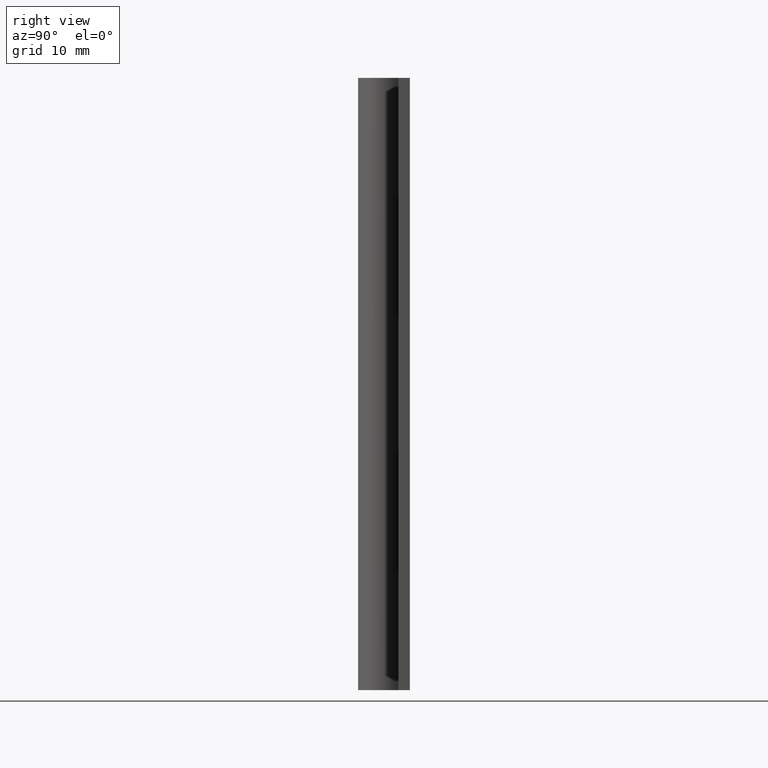
[diagram: clean part render]
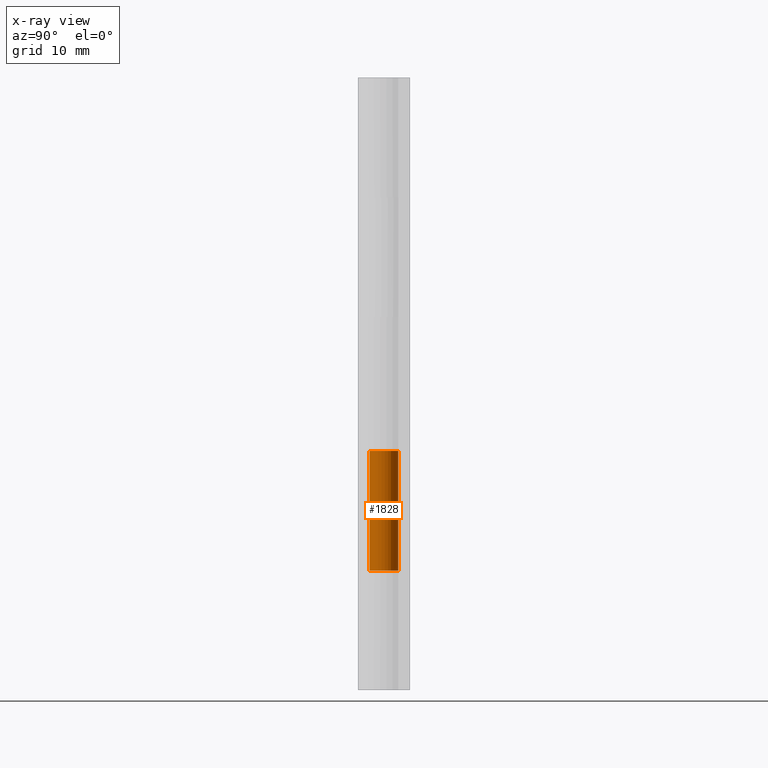
[diagram: x-ray — body ghosted, one internal face saturated and labeled with its STEP entity id]
A machine part, right view, then the same camera in x-ray: the body is ghosted and one INTERNAL B-rep face — a face not visible from any outside direction — is saturated and labeled: STEP entity #1828.
In plain terms, the highlighted face is a freeform B-spline surface patch.
Its self-contained STEP definition (entity closure, byte-faithful):
#1427=CARTESIAN_POINT('',(0.0,1.500000000000000,25.0));
#1428=VERTEX_POINT('',#1427);
#1434=CARTESIAN_POINT('',(-1.265337997103376,0.805555555555553,25.0));
#1435=VERTEX_POINT('',#1434);
#1436=CARTESIAN_POINT('',(-1.265337997103376,0.805555555555554,25.0));
#1437=CARTESIAN_POINT('',(-1.890422249647682,-0.176304541715820,25.000000000000004));
#1438=CARTESIAN_POINT('',(-1.094556678899885,-1.025644030195493,25.0));
#1439=CARTESIAN_POINT('',(-0.298691108152089,-1.874983518675166,25.000000000000004));
#1440=CARTESIAN_POINT('',(0.721687836487034,-1.314977819838291,25.0));
#1441=CARTESIAN_POINT('',(1.742066781126155,-0.754972121001417,25.000000000000004));
#1442=CARTESIAN_POINT('',(1.453008384311226,0.372513939499290,25.0));
#1443=CARTESIAN_POINT('',(1.163949987496296,1.500000000000000,25.000000000000004));
#1444=CARTESIAN_POINT('',(0.0,1.500000000000000,25.0));
#1452=(BOUNDED_CURVE()B_SPLINE_CURVE(2,(#1436,#1437,#1438,#1439,#1440,#1441,#1442,#1443,#1444),.UNSPECIFIED.,.F.,.U.)B_SPLINE_CURVE_WITH_KNOTS((3,2,2,2,3),(0.0,0.250000000000000,0.500000000000000,0.750000000000000,1.0),.UNSPECIFIED.)CURVE()GEOMETRIC_REPRESENTATION_ITEM()RATIONAL_B_SPLINE_CURVE((1.0,0.790045133626194,1.0,0.790045133626194,1.0,0.790045133626194,1.0,0.790045133626194,1.0))REPRESENTATION_ITEM(''));
#1453=EDGE_CURVE('',#1435,#1428,#1452,.T.);
#1625=CARTESIAN_POINT('',(-1.265337997103376,0.805555555555553,12.499999999999719));
#1626=VERTEX_POINT('',#1625);
#1632=CARTESIAN_POINT('',(0.0,1.500000000000000,12.499999999999719));
#1633=VERTEX_POINT('',#1632);
#1634=CARTESIAN_POINT('',(-1.265337997103376,0.805555555555554,12.499999999999719));
#1635=CARTESIAN_POINT('',(-1.890422249647682,-0.176304541715820,12.499999999999719));
#1636=CARTESIAN_POINT('',(-1.094556678899885,-1.025644030195493,12.499999999999719));
#1637=CARTESIAN_POINT('',(-0.298691108152089,-1.874983518675166,12.499999999999719));
#1638=CARTESIAN_POINT('',(0.721687836487034,-1.314977819838291,12.499999999999719));
#1639=CARTESIAN_POINT('',(1.742066781126155,-0.754972121001417,12.499999999999719));
#1640=CARTESIAN_POINT('',(1.453008384311226,0.372513939499290,12.499999999999719));
#1641=CARTESIAN_POINT('',(1.163949987496296,1.500000000000000,12.499999999999719));
#1642=CARTESIAN_POINT('',(0.0,1.500000000000000,12.499999999999719));
#1650=(BOUNDED_CURVE()B_SPLINE_CURVE(2,(#1634,#1635,#1636,#1637,#1638,#1639,#1640,#1641,#1642),.UNSPECIFIED.,.F.,.U.)B_SPLINE_CURVE_WITH_KNOTS((3,2,2,2,3),(0.0,0.250000000000000,0.500000000000000,0.750000000000000,1.0),.UNSPECIFIED.)CURVE()GEOMETRIC_REPRESENTATION_ITEM()RATIONAL_B_SPLINE_CURVE((1.0,0.790045133626194,1.0,0.790045133626194,1.0,0.790045133626194,1.0,0.790045133626194,1.0))REPRESENTATION_ITEM(''));
#1651=EDGE_CURVE('',#1626,#1633,#1650,.T.);
#1787=CARTESIAN_POINT('',(-1.265337997103376,0.805555555555553,25.0));
#1788=CARTESIAN_POINT('',(-1.265337997103376,0.805555555555553,12.499999999999719));
#1789=QUASI_UNIFORM_CURVE('',1,(#1787,#1788),.UNSPECIFIED.,.F.,.U.);
#1790=EDGE_CURVE('',#1435,#1626,#1789,.T.);
#1796=CARTESIAN_POINT('',(-1.236189282933023,0.849609355387249,25.312500000000011));
#1797=CARTESIAN_POINT('',(-1.236189282933023,0.849609355387249,12.179687499999710));
#1798=CARTESIAN_POINT('',(-2.304294629428263,-0.704493567336634,25.312500000000007));
#1799=CARTESIAN_POINT('',(-2.304294629428263,-0.704493567336634,12.179687499999710));
#1800=CARTESIAN_POINT('',(-0.549751840086445,-1.395626351973037,25.312500000000011));
#1801=CARTESIAN_POINT('',(-0.549751840086445,-1.395626351973037,12.179687499999710));
#1802=CARTESIAN_POINT('',(1.204790949255372,-2.086759136609440,25.312500000000007));
#1803=CARTESIAN_POINT('',(1.204790949255372,-2.086759136609440,12.179687499999710));
#1804=CARTESIAN_POINT('',(1.483523795042875,-0.221714116694415,25.312500000000011));
#1805=CARTESIAN_POINT('',(1.483523795042875,-0.221714116694415,12.179687499999710));
#1806=CARTESIAN_POINT('',(1.762256640830378,1.643330903220610,25.312500000000007));
#1807=CARTESIAN_POINT('',(1.762256640830378,1.643330903220610,12.179687499999710));
#1808=CARTESIAN_POINT('',(-0.117688643591769,1.495376000599692,25.312500000000011));
#1809=CARTESIAN_POINT('',(-0.117688643591769,1.495376000599692,12.179687499999710));
#1817=(BOUNDED_SURFACE()B_SPLINE_SURFACE(1,2,((#1796,#1798,#1800,#1802,#1804,#1806,#1808),(#1797,#1799,#1801,#1803,#1805,#1807,#1809)),.UNSPECIFIED.,.F.,.F.,.U.)B_SPLINE_SURFACE_WITH_KNOTS((2,2),(3,2,2,3),(0.0,13.132812500000300),(0.0,2.894056444905424,5.788112889810847,8.682169334716271),.UNSPECIFIED.)GEOMETRIC_REPRESENTATION_ITEM()RATIONAL_B_SPLINE_SURFACE(((1.0,0.622514636637620,1.0,0.622514636637620,1.0,0.622514636637620,1.0),(1.0,0.622514636637620,1.0,0.622514636637620,1.0,0.622514636637620,1.0)))REPRESENTATION_ITEM('')SURFACE());
#1818=ORIENTED_EDGE('',*,*,#1790,.F.);
#1819=ORIENTED_EDGE('',*,*,#1453,.T.);
#1820=CARTESIAN_POINT('',(0.0,1.500000000000000,25.0));
#1821=CARTESIAN_POINT('',(0.0,1.500000000000000,12.499999999999719));
#1822=QUASI_UNIFORM_CURVE('',1,(#1820,#1821),.UNSPECIFIED.,.F.,.U.);
#1823=EDGE_CURVE('',#1428,#1633,#1822,.T.);
#1824=ORIENTED_EDGE('',*,*,#1823,.T.);
#1825=ORIENTED_EDGE('',*,*,#1651,.F.);
#1826=EDGE_LOOP('',(#1818,#1819,#1824,#1825));
#1827=FACE_OUTER_BOUND('',#1826,.T.);
#1828=ADVANCED_FACE('',(#1827),#1817,.F.);